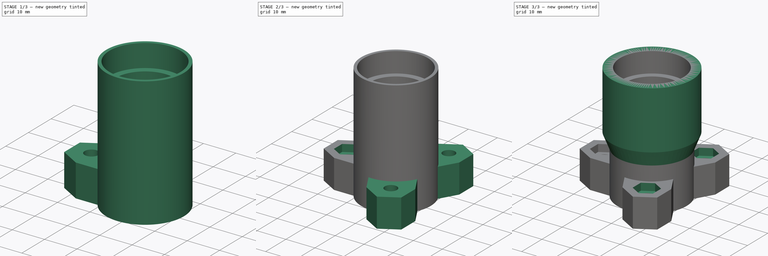
[diagram: build sequence overview — one tinted view per stage of 3, left to right]
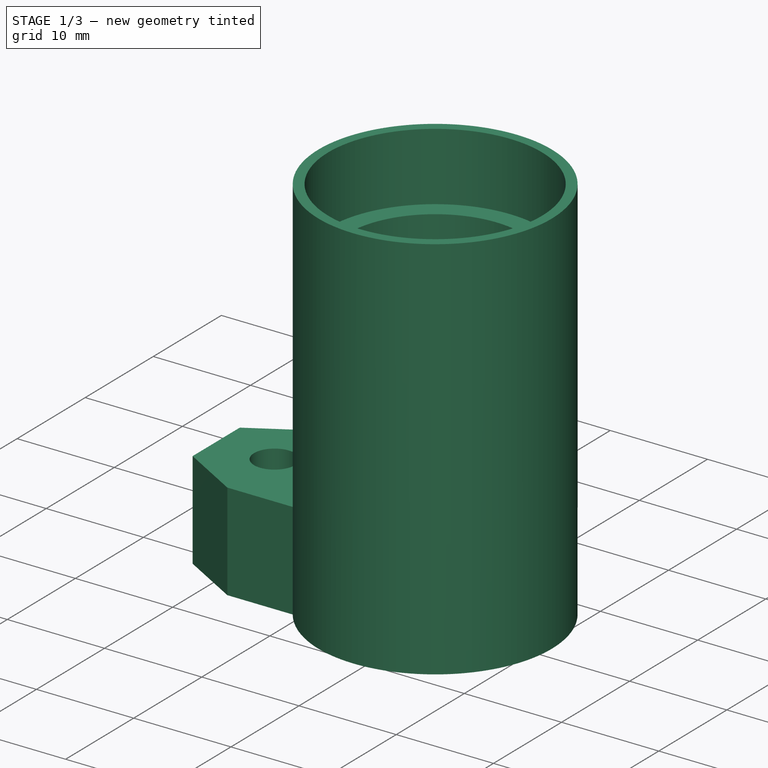
[diagram: stage 1 of 3 — iso view after this stage's code; geometry added in this stage tinted green]
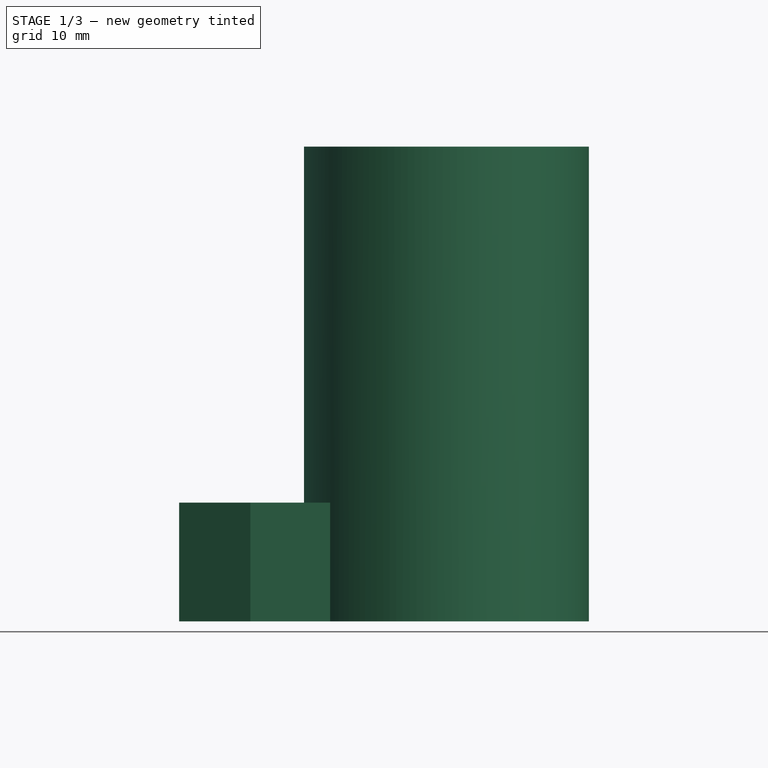
[diagram: stage 1 of 3 — front view after this stage's code; geometry added in this stage tinted green]
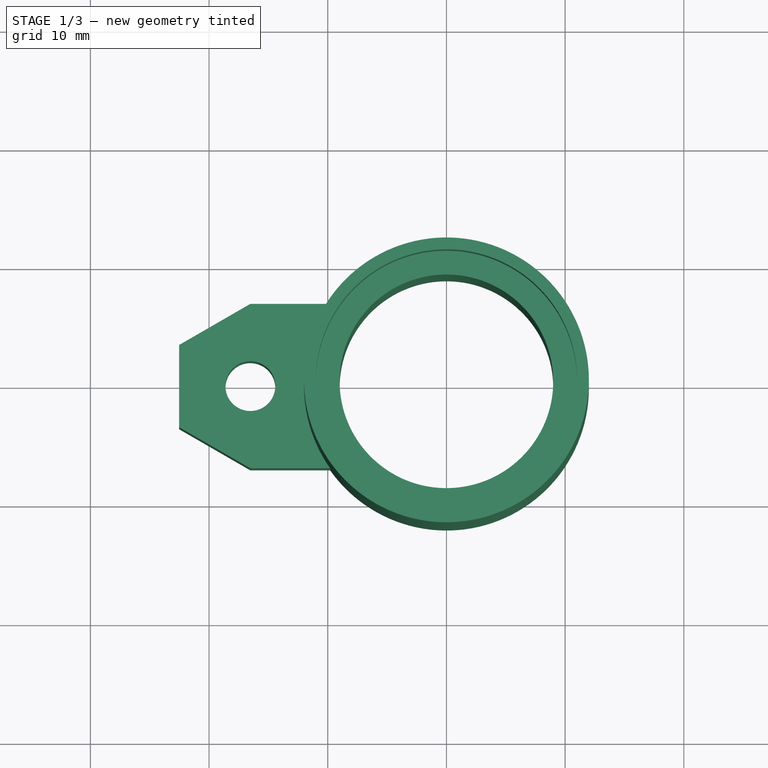
[diagram: stage 1 of 3 — top view after this stage's code; geometry added in this stage tinted green]
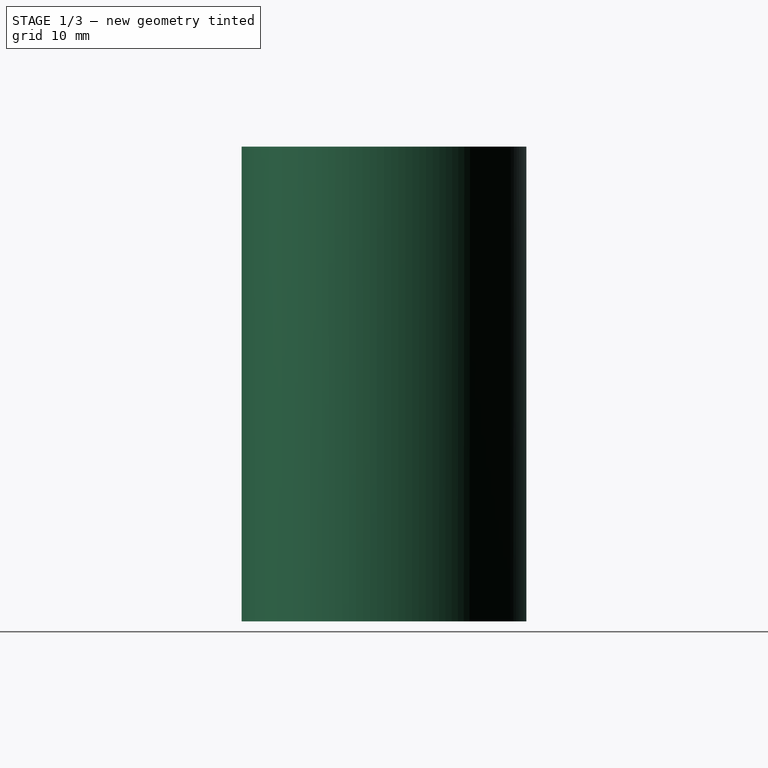
[diagram: stage 1 of 3 — right view after this stage's code; geometry added in this stage tinted green]
FCSTD DOCUMENT  (FreeCAD 0.19R24276 (Git))
Label: Bearing_608_spacer
License: All rights reserved
LicenseURL: http://en.wikipedia.org/wiki/All_rights_reserved
objects: Sketcher::SketchObject×5, PartDesign::Pad×3, PartDesign::Pocket×2, PartDesign::PolarPattern×2, PartDesign::Chamfer×1, PartDesign::Body×1
note: 20 computed .brp shape members not serialized (recipe doc carries the construction recipe); baked Part::Feature solids carry a one-line shape summary decoded from their .brp

FEATURE [Sketcher::SketchObject] Sketch
  FullyConstrained = true
  MapMode = 5
  Support = -> [XY_Plane]
  sketch-geometry (2):
    g0: Circle CenterX=0 CenterY=0 CenterZ=0 NormalX=0 NormalY=0 NormalZ=1 AngleXU=0 Radius=12
    g1: Circle CenterX=0 CenterY=0 CenterZ=0 NormalX=0 NormalY=0 NormalZ=1 AngleXU=0 Radius=9
  constraints (4):
    c: Coincident(g0,g-1)
    c: Coincident(g1,g0)
    c: Radius(g1) = 9
    c: Radius(g0) = 12
FEATURE [PartDesign::Pad] Pad
  Direction = (1,1,1)
  Length = 39.99
  Length2 = 100
  Profile = -> Sketch
  Type = 0
FEATURE [Sketcher::SketchObject] Sketch001
  FullyConstrained = true
  MapMode = 5
  Placement = pos=(0,0,39.99) rot=(0,0,1;0rad)
  Support = -> [Pad]
  sketch-geometry (1):
    g0: Circle CenterX=0 CenterY=0 CenterZ=0 NormalX=0 NormalY=0 NormalZ=1 AngleXU=0 Radius=11
  constraints (2):
    c: Coincident(g0,g-1)
    c: Radius(g0) = 11
FEATURE [PartDesign::Pocket] Pocket
  BaseFeature = -> Pad
  Length = 7
  Length2 = 100
  Profile = -> Sketch001
  Type = 0
FEATURE [Sketcher::SketchObject] Sketch002
  FullyConstrained = true
  MapMode = 5
  Placement = pos=(0,0,0) rot=(1,0,0;3.14159rad)
  Support = -> [Pocket]
  sketch-geometry (18):
    g0: LineSegment StartX=-13.02 StartY=2.02073 StartZ=0 EndX=-16.52 EndY=4.04145 EndZ=0
    g1: LineSegment StartX=-16.52 StartY=4.04145 StartZ=0 EndX=-20.02 EndY=2.02073 EndZ=0
    g2: LineSegment StartX=-20.02 StartY=2.02073 StartZ=0 EndX=-20.02 EndY=-2.02073 EndZ=0
    g3: LineSegment StartX=-20.02 StartY=-2.02073 StartZ=0 EndX=-16.52 EndY=-4.04145 EndZ=0
    g4: LineSegment StartX=-16.52 StartY=-4.04145 StartZ=0 EndX=-13.02 EndY=-2.02073 EndZ=0
    g5: LineSegment StartX=-13.02 StartY=-2.02073 StartZ=0 EndX=-13.02 EndY=2.02073 EndZ=0
    g6: Circle CenterX=-16.52 CenterY=0 CenterZ=0 NormalX=0 NormalY=0 NormalZ=1 AngleXU=0 Radius=4.04145
    g7: LineSegment StartX=-10.52 StartY=-3.4641 StartZ=0 EndX=-10.52 EndY=3.4641 EndZ=0
    g8: LineSegment StartX=-10.52 StartY=3.4641 StartZ=0 EndX=-16.52 EndY=6.9282 EndZ=0
    g9: LineSegment StartX=-16.52 StartY=6.9282 StartZ=0 EndX=-22.52 EndY=3.4641 EndZ=0
    g10: LineSegment StartX=-22.52 StartY=3.4641 StartZ=0 EndX=-22.52 EndY=-3.4641 EndZ=0
    g11: LineSegment StartX=-22.52 StartY=-3.4641 StartZ=0 EndX=-16.52 EndY=-6.9282 EndZ=0
    g12: LineSegment StartX=-16.52 StartY=-6.9282 StartZ=0 EndX=-10.52 EndY=-3.4641 EndZ=0
    g13: Circle CenterX=-16.52 CenterY=0 CenterZ=0 NormalX=0 NormalY=0 NormalZ=1 AngleXU=0 Radius=6.9282
    g14: LineSegment StartX=-16.52 StartY=6.9282 StartZ=0 EndX=-9.79796 EndY=6.9282 EndZ=0
    g15: LineSegment StartX=-16.52 StartY=-6.9282 StartZ=0 EndX=-9.79796 EndY=-6.9282 EndZ=0
    g16: ArcOfCircle CenterX=0 CenterY=0 CenterZ=0 NormalX=0 NormalY=0 NormalZ=1 AngleXU=0 Radius=12 StartAngle=2.52611 EndAngle=3.75707
    g17: Circle CenterX=-16.52 CenterY=0 CenterZ=0 NormalX=0 NormalY=0 NormalZ=1 AngleXU=0 Radius=2.1
  constraints (43):
    c: Coincident(g0,g1)
    c: Coincident(g1,g2)
    c: Coincident(g2,g3)
    c: Coincident(g3,g4)
    c: Coincident(g4,g5)
    c: Coincident(g5,g0)
    c: Equal(g0, g1-g5) x5
    c: PointOnObject(g0,g6)
    c: PointOnObject(g1,g6)
    c: PointOnObject(g2,g6)
    c: PointOnObject(g3,g6)
    c: PointOnObject(g4,g6)
    c: PointOnObject(g5,g6)
    c: Vertical(g2)
    c: DistanceX(g1,g0) = 7
    c: Coincident(g7,g8)
    c: Coincident(g8,g9)
    c: Coincident(g9,g10)
    c: Coincident(g10,g11)
    c: Coincident(g11,g12)
    c: Coincident(g12,g7)
    c: Equal(g7, g8-g12) x5
    c: PointOnObject(g7,g13)
    c: PointOnObject(g8,g13)
    c: PointOnObject(g9,g13)
    c: PointOnObject(g10,g13)
    c: PointOnObject(g11,g13)
    c: PointOnObject(g12,g13)
    c: Coincident(g13,g6)
    c: Vertical(g10)
    c: DistanceX(g10,g2) = 2.5
    c: Coincident(g14,g8)
    c: Horizontal(g14)
    c: Coincident(g15,g11)
    c: Horizontal(g15)
    c: Coincident(g16,g14)
    c: Coincident(g16,g15)
    c: Coincident(g17,g6)
    c: Radius(g17) = 2.1
    c: Coincident(g16,g-1)
    c: Radius(g16) = 12
    c: PointOnObject(g6,g-1)
    c: DistanceX(g17) = -16.52
FEATURE [PartDesign::Pad] Pad001
  BaseFeature = -> Pocket
  Direction = (1,1,1)
  Length = 10
  Length2 = 100
  Profile = -> Sketch002
  Reversed = true
  Type = 0
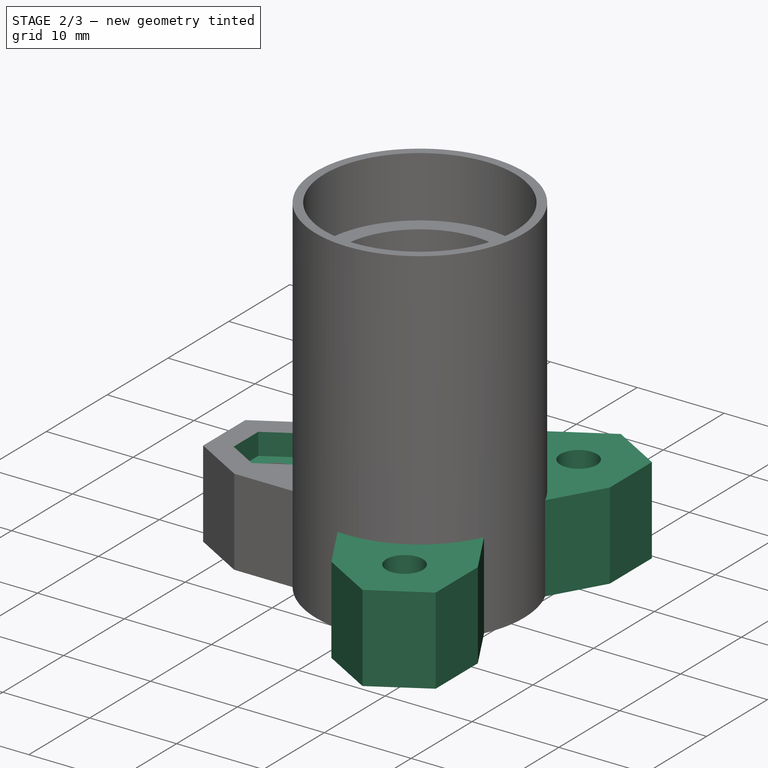
[diagram: stage 2 of 3 — iso view after this stage's code; geometry added in this stage tinted green]
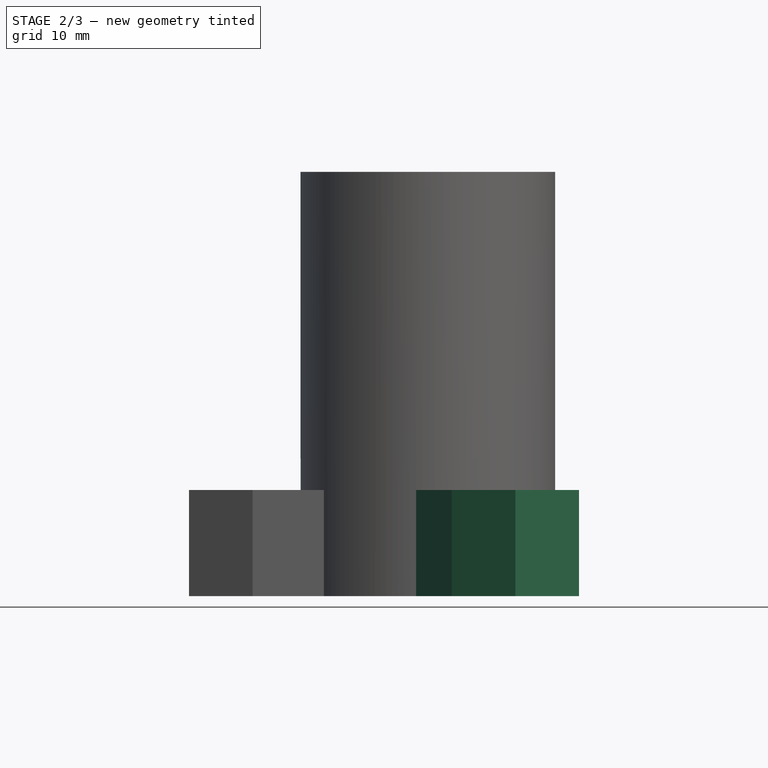
[diagram: stage 2 of 3 — front view after this stage's code; geometry added in this stage tinted green]
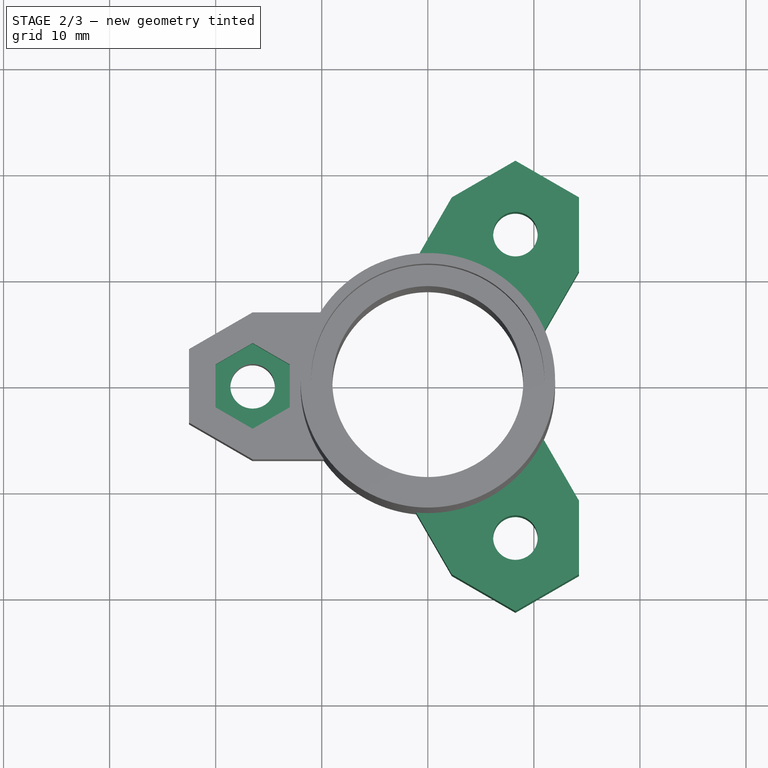
[diagram: stage 2 of 3 — top view after this stage's code; geometry added in this stage tinted green]
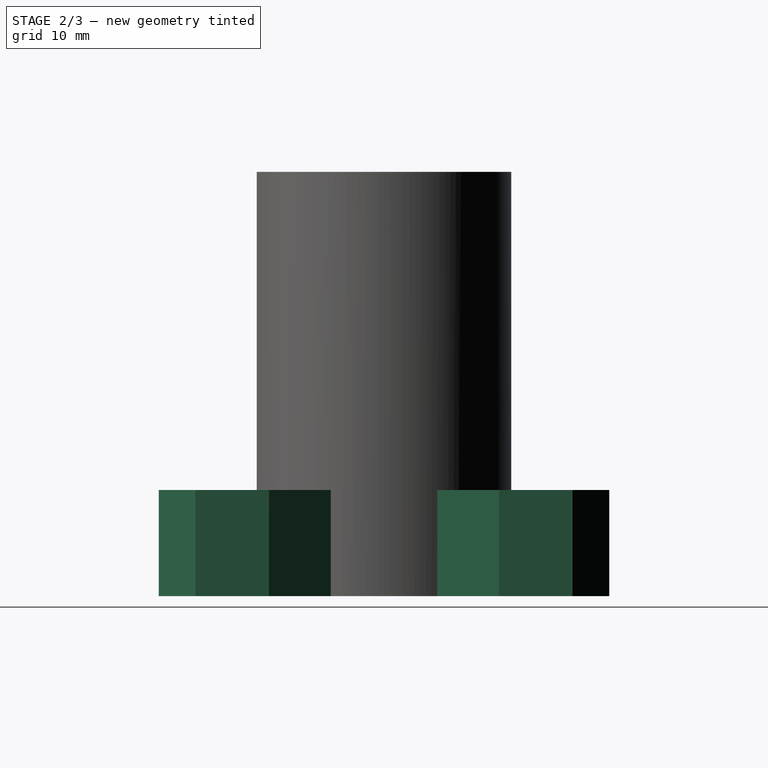
[diagram: stage 2 of 3 — right view after this stage's code; geometry added in this stage tinted green]
FEATURE [PartDesign::PolarPattern] PolarPattern
  Angle = 360
  Axis = -> Sketch002 [N_Axis]
  BaseFeature = -> Pad001
  Occurrences = 3
  Originals = -> [Pad001]
FEATURE [Sketcher::SketchObject] Sketch003
  FullyConstrained = true
  MapMode = 5
  Placement = pos=(0,0,10) rot=(0,0,1;0rad)
  Support = -> [PolarPattern]
  sketch-geometry (7):
    g0: LineSegment StartX=-13.02 StartY=2.02073 StartZ=0 EndX=-16.52 EndY=4.04145 EndZ=0
    g1: LineSegment StartX=-16.52 StartY=4.04145 StartZ=0 EndX=-20.02 EndY=2.02073 EndZ=0
    g2: LineSegment StartX=-20.02 StartY=2.02073 StartZ=0 EndX=-20.02 EndY=-2.02073 EndZ=0
    g3: LineSegment StartX=-20.02 StartY=-2.02073 StartZ=0 EndX=-16.52 EndY=-4.04145 EndZ=0
    g4: LineSegment StartX=-16.52 StartY=-4.04145 StartZ=0 EndX=-13.02 EndY=-2.02073 EndZ=0
    g5: LineSegment StartX=-13.02 StartY=-2.02073 StartZ=0 EndX=-13.02 EndY=2.02073 EndZ=0
    g6: Circle CenterX=-16.52 CenterY=0 CenterZ=0 NormalX=0 NormalY=0 NormalZ=1 AngleXU=0 Radius=4.04145
  constraints (17):
    c: Coincident(g0,g1)
    c: Coincident(g1,g2)
    c: Coincident(g2,g3)
    c: Coincident(g3,g4)
    c: Coincident(g4,g5)
    c: Coincident(g5,g0)
    c: Equal(g0, g1-g5) x5
    c: PointOnObject(g0,g6)
    c: PointOnObject(g1,g6)
    c: PointOnObject(g2,g6)
    c: PointOnObject(g3,g6)
    c: PointOnObject(g4,g6)
    c: PointOnObject(g5,g6)
    c: PointOnObject(g6,g-1)
    c: DistanceX(g6) = -16.52
    c: Vertical(g5)
    c: DistanceX(g1,g0) = 7
FEATURE [PartDesign::Pocket] Pocket001
  BaseFeature = -> PolarPattern
  Length = 5
  Length2 = 100
  Midplane = true
  Profile = -> Sketch003
  Type = 0
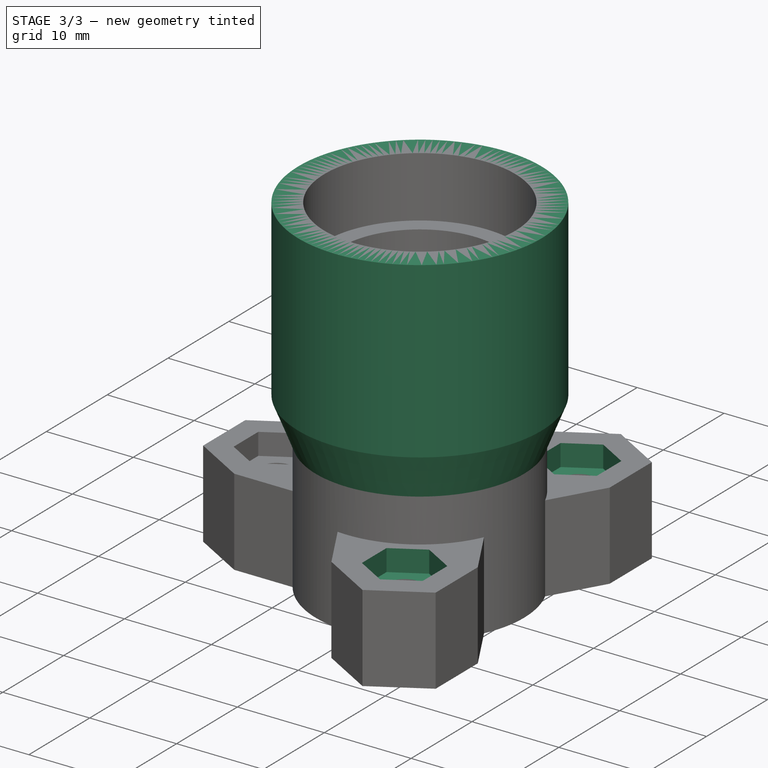
[diagram: stage 3 of 3 — iso view after this stage's code; geometry added in this stage tinted green]
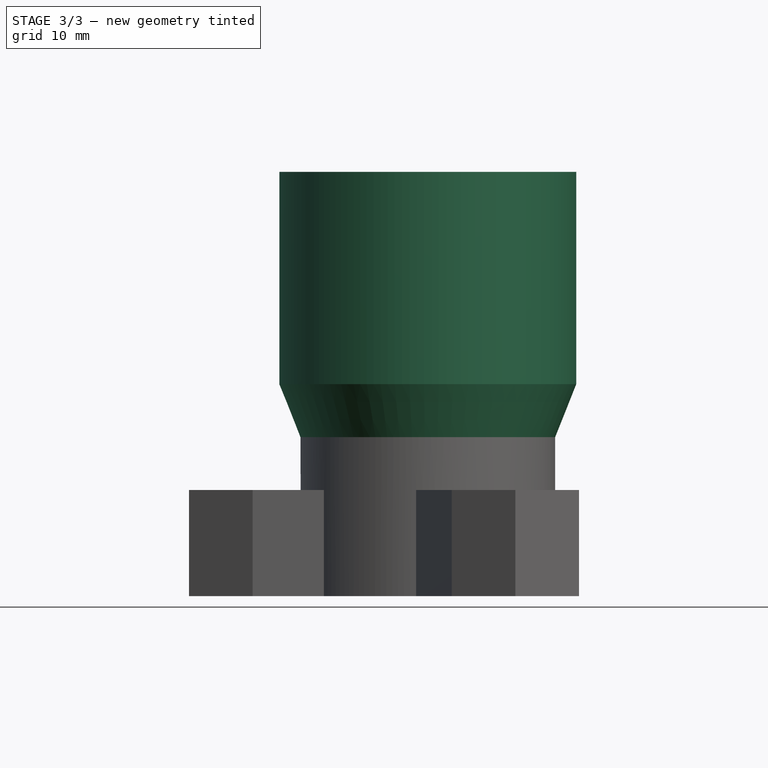
[diagram: stage 3 of 3 — front view after this stage's code; geometry added in this stage tinted green]
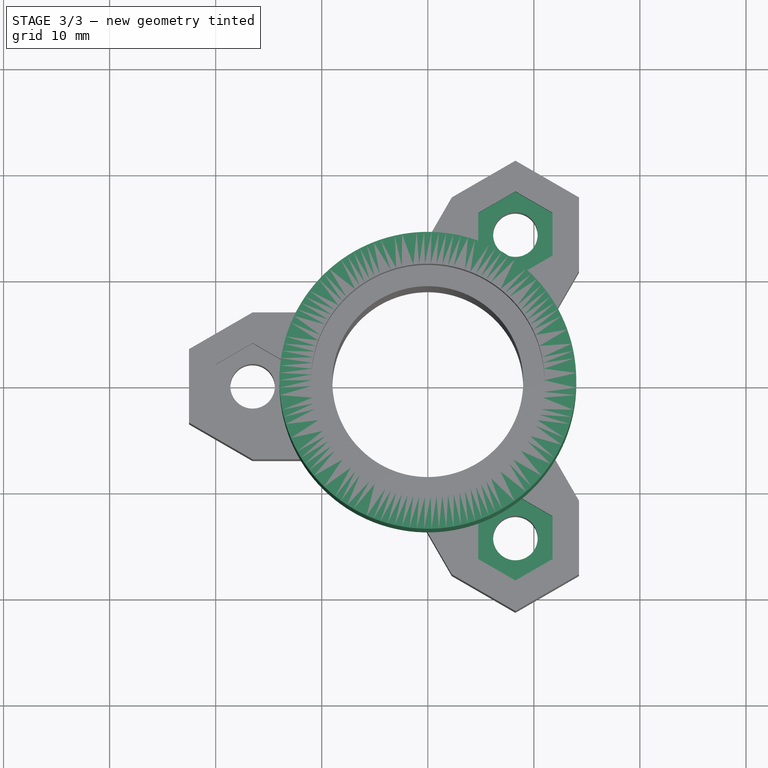
[diagram: stage 3 of 3 — top view after this stage's code; geometry added in this stage tinted green]
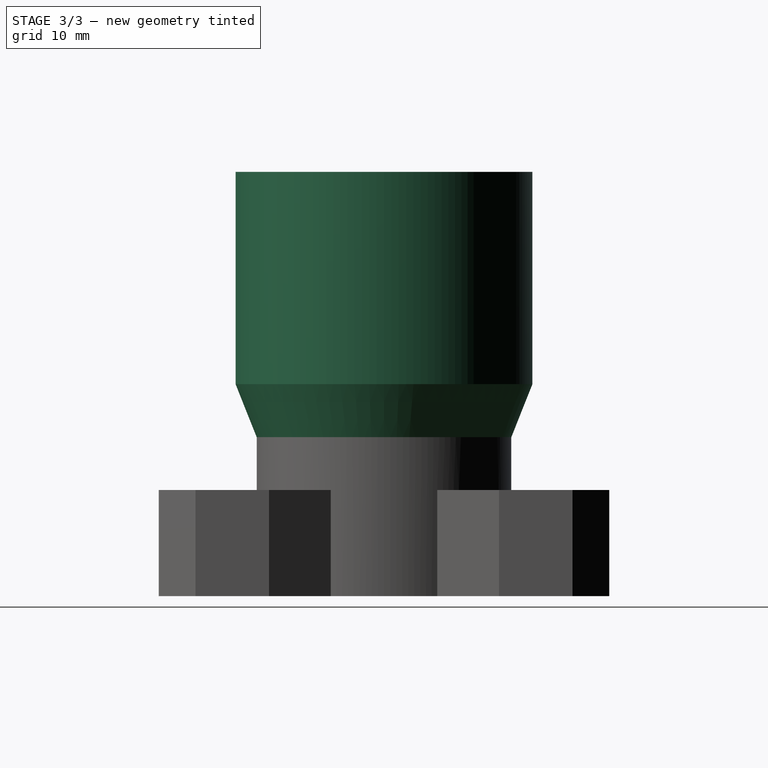
[diagram: stage 3 of 3 — right view after this stage's code; geometry added in this stage tinted green]
FEATURE [PartDesign::PolarPattern] PolarPattern001
  Angle = 360
  Axis = -> Sketch003 [N_Axis]
  BaseFeature = -> Pocket001
  Occurrences = 3
  Originals = -> [Pocket001]
FEATURE [Sketcher::SketchObject] Sketch004
  FullyConstrained = true
  MapMode = 5
  Placement = pos=(0,0,39.99) rot=(0,0,1;0rad)
  Support = -> [PolarPattern001]
  sketch-geometry (2):
    g0: Circle CenterX=0 CenterY=0 CenterZ=0 NormalX=0 NormalY=0 NormalZ=1 AngleXU=0 Radius=11
    g1: Circle CenterX=0 CenterY=0 CenterZ=0 NormalX=0 NormalY=0 NormalZ=1 AngleXU=0 Radius=14
  constraints (4):
    c: Coincident(g0,g-1)
    c: Coincident(g1,g0)
    c: Radius(g0) = 11
    c: Radius(g1) = 14
FEATURE [PartDesign::Pad] Pad002
  BaseFeature = -> PolarPattern001
  Direction = (1,1,1)
  Length = 0.01
  Length2 = 25
  Profile = -> Sketch004
  Reversed = true
  Type = 4
FEATURE [PartDesign::Chamfer] Chamfer
  Angle = 45
  Base = -> Pad002 [Edge16]
  BaseFeature = -> Pad002
  ChamferType = 1
  FlipDirection = false
  Size = 1.99
  Size2 = 5
  SupportTransform = false
FEATURE [PartDesign::Body] Body
  Group = -> [Sketch,Pad,Sketch001,Pocket,Sketch002,Pad001,PolarPattern,Sketch003,Pocket001,PolarPattern001,Sketch004,Pad002,Chamfer]
  Origin = -> Origin
  Tip = -> Chamfer
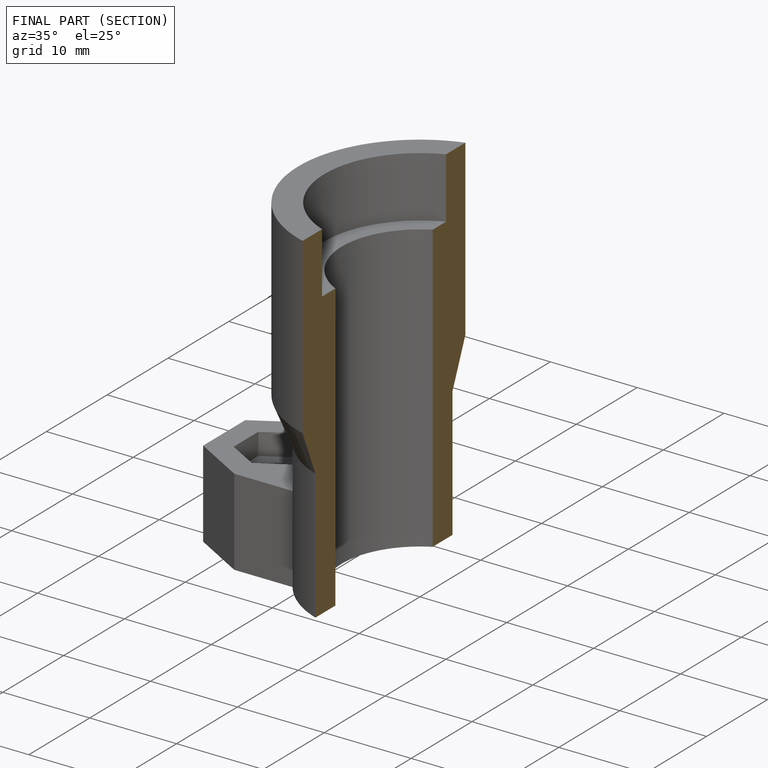
[diagram: finished part — half-section view (interior)]
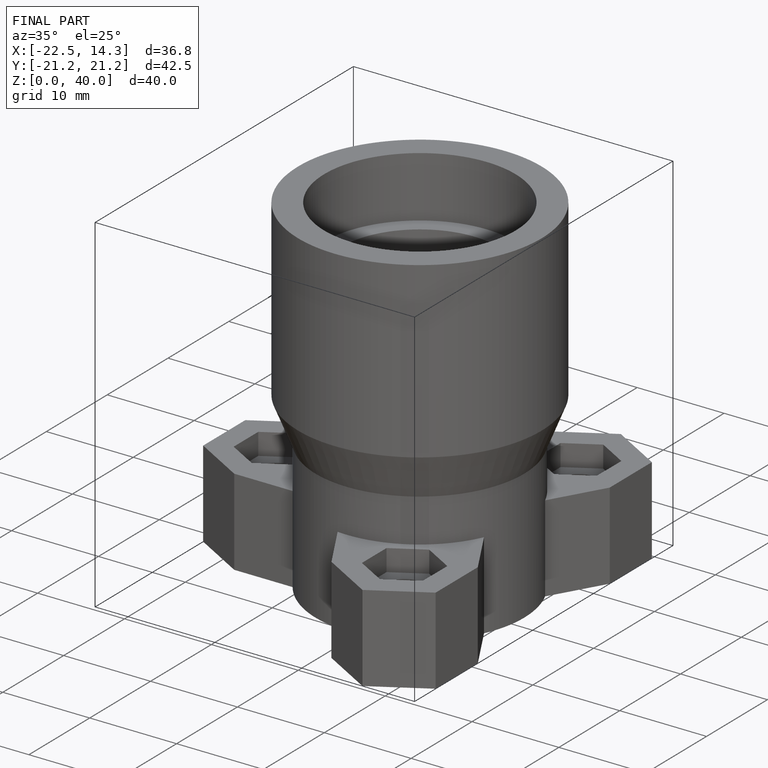
[diagram: finished part — iso view with bounding-box wireframe]
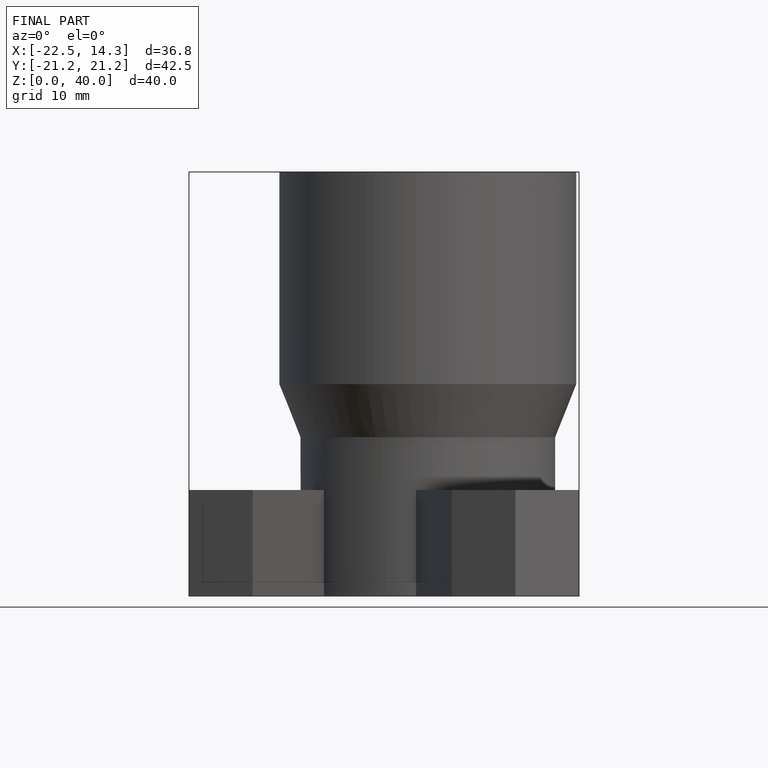
[diagram: finished part — front view with bounding-box wireframe]
